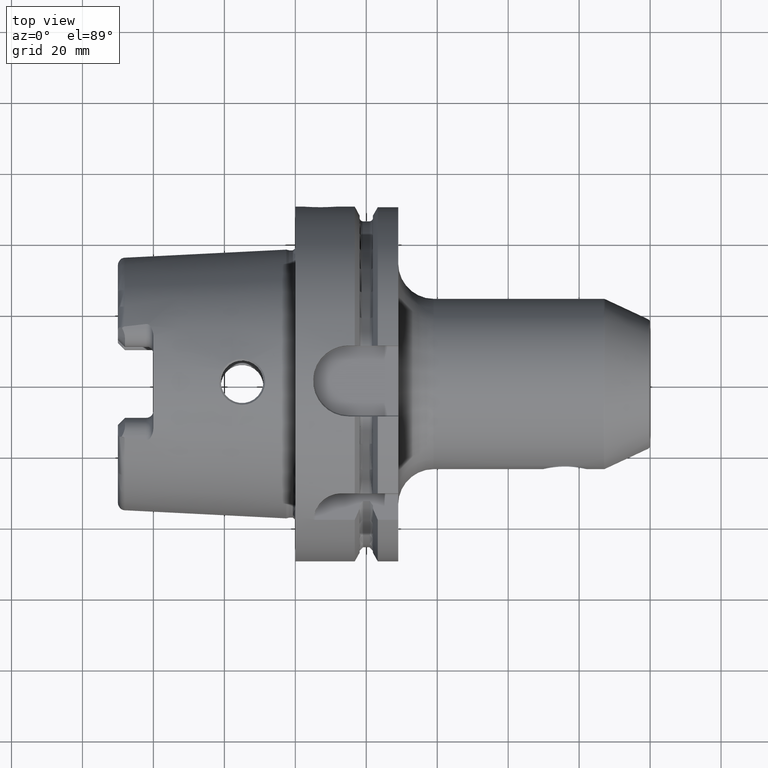
[diagram: clean part render]
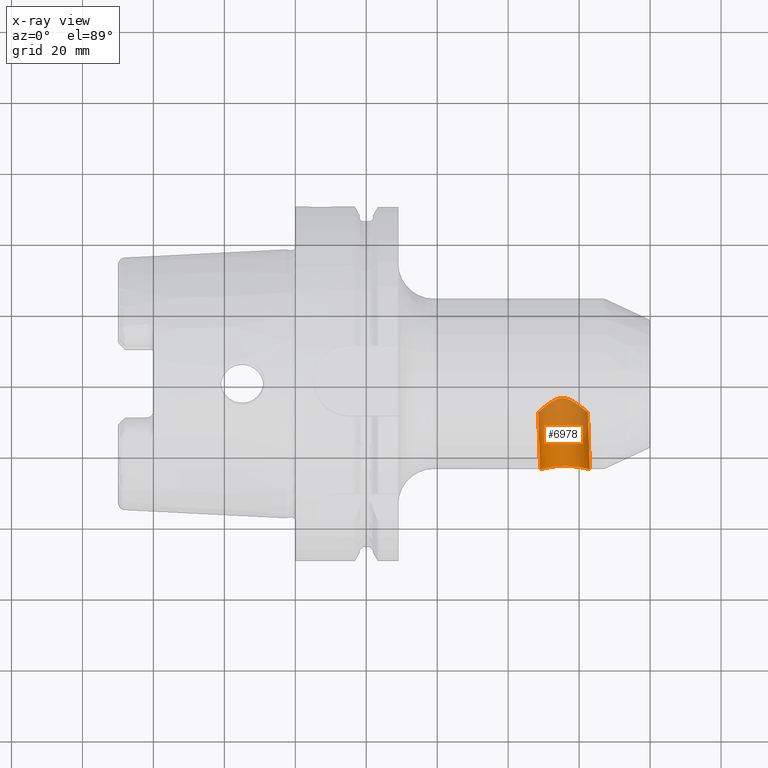
[diagram: x-ray — body ghosted, one internal face saturated and labeled with its STEP entity id]
A machine part, top view, then the same camera in x-ray: the body is ghosted and one INTERNAL B-rep face — a face not visible from any outside direction — is saturated and labeled: STEP entity #6978.
In plain terms, the highlighted cylindrical surface (edge-blend (fillet) strip) has radius 7 mm, axis along (0.0349, -0.9994, 0).
Its self-contained STEP definition (entity closure, byte-faithful):
#6815=CARTESIAN_POINT('',(8.300426681009E1,-2.4E1,0.E0));
#6816=CARTESIAN_POINT('',(8.300426681009E1,-2.4E1,-2.646478180049E-1));
#6817=CARTESIAN_POINT('',(8.297396423519E1,-2.399122910703E1,
-7.954228360849E-1));
#6818=CARTESIAN_POINT('',(8.283583810851E1,-2.395172624703E1,
-1.587451057867E0));
#6819=CARTESIAN_POINT('',(8.260710967852E1,-2.388786146220E1,
-2.359228766272E0));
#6820=CARTESIAN_POINT('',(8.228581951392E1,-2.380148209536E1,
-3.109850768916E0));
#6821=CARTESIAN_POINT('',(8.187795884532E1,-2.369746501381E1,
-3.820109690109E0));
#6822=CARTESIAN_POINT('',(8.138193658657E1,-2.357964213764E1,
-4.487892795945E0));
#6823=CARTESIAN_POINT('',(8.081090217914E1,-2.345599399353E1,
-5.092150175644E0));
#6824=CARTESIAN_POINT('',(8.016905727363E1,-2.333261703643E1,
-5.628127481846E0));
#6825=CARTESIAN_POINT('',(7.947231863742E1,-2.321779401637E1,
-6.082255135785E0));
#6826=CARTESIAN_POINT('',(7.873270899866E1,-2.311796558247E1,
-6.449548571785E0));
#6827=CARTESIAN_POINT('',(7.796024489358E1,-2.303844532586E1,
-6.726723569317E0));
#6828=CARTESIAN_POINT('',(7.717203160155E1,-2.298359994351E1,
-6.910902147531E0));
#6829=CARTESIAN_POINT('',(7.636887251608E1,-2.295539259802E1,
-7.003587712269E0));
#6830=CARTESIAN_POINT('',(7.556954722523E1,-2.295520791245E1,
-7.004189939865E0));
#6831=CARTESIAN_POINT('',(7.477041970104E1,-2.298292951775E1,
-6.913118325855E0));
#6832=CARTESIAN_POINT('',(7.398948282721E1,-2.303703488857E1,
-6.731511606225E0));
#6833=CARTESIAN_POINT('',(7.322711130973E1,-2.311545178623E1,
-6.458471291347E0));
#6834=CARTESIAN_POINT('',(7.249810324438E1,-2.321404967836E1,
-6.096388920911E0));
#6835=CARTESIAN_POINT('',(7.181230646225E1,-2.332759538658E1,
-5.648713337637E0));
#6836=CARTESIAN_POINT('',(7.117908988089E1,-2.345020195230E1,
-5.118550200040E0));
#6837=CARTESIAN_POINT('',(7.061460038141E1,-2.357366340859E1,
-4.519025312136E0));
#6838=CARTESIAN_POINT('',(7.012222165174E1,-2.369210528733E1,
-3.853196871175E0));
#6839=CARTESIAN_POINT('',(6.971579842342E1,-2.379733080789E1,
-3.141691476938E0));
#6840=CARTESIAN_POINT('',(6.939451027474E1,-2.388520424095E1,
-2.386646974482E0));
#6841=CARTESIAN_POINT('',(6.916504917109E1,-2.395048988851E1,
-1.607395407619E0));
#6842=CARTESIAN_POINT('',(6.902626282057E1,-2.399098043300E1,
-8.061864350974E-1));
#6843=CARTESIAN_POINT('',(6.899573318991E1,-2.4E1,-2.683475803462E-1));
#6844=CARTESIAN_POINT('',(6.899573318991E1,-2.4E1,0.E0));
#6846=CARTESIAN_POINT('',(6.843700087804E1,-8.E0,0.E0));
#6847=CARTESIAN_POINT('',(6.843700087804E1,-8.E0,-2.277152122246E-1));
#6848=CARTESIAN_POINT('',(6.845855267602E1,-7.980548312996E0,
-6.855763775667E-1));
#6849=CARTESIAN_POINT('',(6.855753100512E1,-7.891424543197E0,
-1.373251024510E0));
#6850=CARTESIAN_POINT('',(6.872370604836E1,-7.742520469646E0,
-2.053826209869E0));
#6851=CARTESIAN_POINT('',(6.896322636743E1,-7.529572158118E0,
-2.734910701628E0));
#6852=CARTESIAN_POINT('',(6.928197345914E1,-7.249578965943E0,
-3.409362701011E0));
#6853=CARTESIAN_POINT('',(6.968454286628E1,-6.901999724865E0,
-4.068892132605E0));
#6854=CARTESIAN_POINT('',(7.018363426487E1,-6.482282800926E0,
-4.708016931690E0));
#6855=CARTESIAN_POINT('',(7.072610074179E1,-6.043574109273E0,
-5.254986372665E0));
#6856=CARTESIAN_POINT('',(7.125990469695E1,-5.633164993184E0,
-5.689460508792E0));
#6857=CARTESIAN_POINT('',(7.179498823040E1,-5.247160687421E0,
-6.045620856212E0));
#6858=CARTESIAN_POINT('',(7.234557676922E1,-4.882923216596E0,
-6.342030263788E0));
#6859=CARTESIAN_POINT('',(7.290827734497E1,-4.553423913225E0,
-6.581224842106E0));
#6860=CARTESIAN_POINT('',(7.347985559919E1,-4.272821446855E0,
-6.765464877501E0));
#6861=CARTESIAN_POINT('',(7.404574670202E1,-4.060467264606E0,
-6.893860243963E0));
#6862=CARTESIAN_POINT('',(7.457324768327E1,-3.929567188392E0,
-6.968636213893E0));
#6863=CARTESIAN_POINT('',(7.507022745778E1,-3.869378593445E0,
-7.001999199630E0));
#6864=CARTESIAN_POINT('',(7.555672075622E1,-3.871320750987E0,
-7.000932254604E0));
#6865=CARTESIAN_POINT('',(7.606448471606E1,-3.936611146412E0,
-6.964697250058E0));
#6866=CARTESIAN_POINT('',(7.661365946534E1,-4.076245231327E0,
-6.884665951175E0));
#6867=CARTESIAN_POINT('',(7.720561461813E1,-4.299720621863E0,
-6.748596126398E0));
#6868=CARTESIAN_POINT('',(7.780126675841E1,-4.589046010017E0,
-6.556633256098E0));
#6869=CARTESIAN_POINT('',(7.838697117092E1,-4.923866355036E0,
-6.310443654655E0));
#6870=CARTESIAN_POINT('',(7.895979958056E1,-5.290083390758E0,
-6.008249491131E0));
#6871=CARTESIAN_POINT('',(7.952074344305E1,-5.678328018963E0,
-5.644637227146E0));
#6872=CARTESIAN_POINT('',(8.008349042767E1,-6.091386382316E0,
-5.199971950143E0));
#6873=CARTESIAN_POINT('',(8.065500600586E1,-6.530926012567E0,
-4.640584544032E0));
#6874=CARTESIAN_POINT('',(8.117179940276E1,-6.942774091524E0,
-3.998483196537E0));
#6875=CARTESIAN_POINT('',(8.158481114165E1,-7.279754133892E0,
-3.343719929051E0));
#6876=CARTESIAN_POINT('',(8.191093446656E1,-7.549992799199E0,
-2.676882631349E0));
#6877=CARTESIAN_POINT('',(8.215442019326E1,-7.753944970693E0,
-2.008484009918E0));
#6878=CARTESIAN_POINT('',(8.232320298745E1,-7.896318469512E0,
-1.342151329406E0));
#6879=CARTESIAN_POINT('',(8.242362163430E1,-7.981395776244E0,
-6.702351665708E-1));
#6880=CARTESIAN_POINT('',(8.244553449822E1,-8.E0,-2.226397924469E-1));
#6881=CARTESIAN_POINT('',(8.244553449822E1,-8.E0,0.E0));
#6914=DIRECTION('',(-3.489949670250E-2,9.993908270191E-1,0.E0));
#6915=VECTOR('',#6914,1.600975270878E1);
#6916=CARTESIAN_POINT('',(8.300426681009E1,-2.4E1,0.E0));
#6917=LINE('',#6916,#6915);
#6955=DIRECTION('',(-3.489949670250E-2,9.993908270191E-1,0.E0));
#6956=VECTOR('',#6955,1.600975270878E1);
#6957=CARTESIAN_POINT('',(6.899573318991E1,-2.4E1,0.E0));
#6958=LINE('',#6957,#6956);
#6959=VERTEX_POINT('',#6844);
#6960=VERTEX_POINT('',#6815);
#6961=VERTEX_POINT('',#6881);
#6962=VERTEX_POINT('',#6846);
#6963=CARTESIAN_POINT('',(7.497942885935E1,5.225333676844E0,0.E0));
#6964=DIRECTION('',(3.489949670250E-2,-9.993908270191E-1,0.E0));
#6965=DIRECTION('',(-9.993908270191E-1,-3.489949670250E-2,0.E0));
#6966=AXIS2_PLACEMENT_3D('',#6963,#6964,#6965);
#6967=CYLINDRICAL_SURFACE('',#6966,7.E0);
#6969=ORIENTED_EDGE('',*,*,#6968,.T.);
#6971=ORIENTED_EDGE('',*,*,#6970,.T.);
#6973=ORIENTED_EDGE('',*,*,#6972,.T.);
#6975=ORIENTED_EDGE('',*,*,#6974,.F.);
#6976=EDGE_LOOP('',(#6969,#6971,#6973,#6975));
#6977=FACE_OUTER_BOUND('',#6976,.F.);
#6978=ADVANCED_FACE('',(#6977),#6967,.F.);
#6845=B_SPLINE_CURVE_WITH_KNOTS('',3,(#6815,#6816,#6817,#6818,#6819,#6820,#6821,
#6822,#6823,#6824,#6825,#6826,#6827,#6828,#6829,#6830,#6831,#6832,#6833,#6834,
#6835,#6836,#6837,#6838,#6839,#6840,#6841,#6842,#6843,#6844),.UNSPECIFIED.,.F.,
.F.,(4,1,1,1,1,1,1,1,1,1,1,1,1,1,1,1,1,1,1,1,1,1,1,1,1,1,1,4),(0.E0,
3.703703703704E-2,7.407407407407E-2,1.111111111111E-1,1.481481481481E-1,
1.851851851852E-1,2.222222222222E-1,2.592592592593E-1,2.962962962963E-1,
3.333333333333E-1,3.703703703704E-1,4.074074074074E-1,4.444444444444E-1,
4.814814814815E-1,5.185185185185E-1,5.555555555556E-1,5.925925925926E-1,
6.296296296296E-1,6.666666666667E-1,7.037037037037E-1,7.407407407407E-1,
7.777777777778E-1,8.148148148148E-1,8.518518518519E-1,8.888888888889E-1,
9.259259259259E-1,9.629629629630E-1,1.E0),.UNSPECIFIED.);
#6882=B_SPLINE_CURVE_WITH_KNOTS('',3,(#6846,#6847,#6848,#6849,#6850,#6851,#6852,
#6853,#6854,#6855,#6856,#6857,#6858,#6859,#6860,#6861,#6862,#6863,#6864,#6865,
#6866,#6867,#6868,#6869,#6870,#6871,#6872,#6873,#6874,#6875,#6876,#6877,#6878,
#6879,#6880,#6881),.UNSPECIFIED.,.F.,.F.,(4,1,1,1,1,1,1,1,1,1,1,1,1,1,1,1,1,1,1,
1,1,1,1,1,1,1,1,1,1,1,1,1,1,4),(0.E0,3.030303030303E-2,6.060606060606E-2,
9.090909090909E-2,1.212121212121E-1,1.515151515152E-1,1.818181818182E-1,
2.121212121212E-1,2.424242424242E-1,2.727272727273E-1,3.030303030303E-1,
3.333333333333E-1,3.636363636364E-1,3.939393939394E-1,4.242424242424E-1,
4.545454545455E-1,4.848484848485E-1,5.151515151515E-1,5.454545454545E-1,
5.757575757576E-1,6.060606060606E-1,6.363636363636E-1,6.666666666667E-1,
6.969696969697E-1,7.272727272727E-1,7.575757575758E-1,7.878787878788E-1,
8.181818181818E-1,8.484848484848E-1,8.787878787879E-1,9.090909090909E-1,
9.393939393939E-1,9.696969696970E-1,1.E0),.UNSPECIFIED.);
#6968=EDGE_CURVE('',#6960,#6959,#6845,.T.);
#6970=EDGE_CURVE('',#6959,#6962,#6958,.T.);
#6972=EDGE_CURVE('',#6962,#6961,#6882,.T.);
#6974=EDGE_CURVE('',#6960,#6961,#6917,.T.);